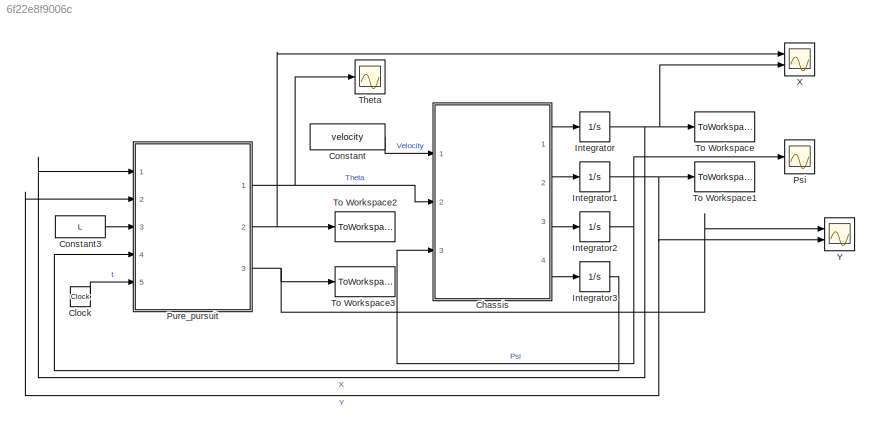
MODEL slx_6f22e8f9006c
KIND model
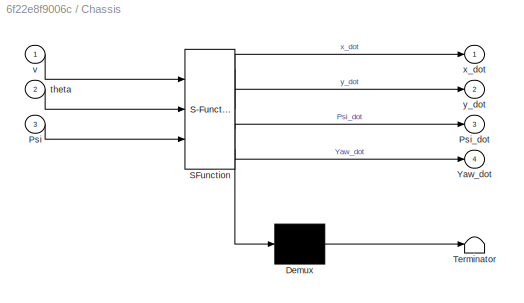
BLOCK [SubSystem] Chassis
  ErrorFcn = Stateflow.Translate.translate
  PermitHierarchicalResolution = ExplicitOnly
  Ports = [3, 4]
  RequestExecContextInheritance = off
  SFBlockType = MATLAB Function
  TreatAsAtomicUnit = on
BLOCK [Demux] Chassis/ Demux 
  Outputs = 1
  Ports = [1, 1]
BLOCK [S-Function] Chassis/ SFunction 
  EnableBusSupport = on
  FunctionName = sf_sfun
  PortCounts = [3 5]
  Ports = [3, 5]
  Tag = Stateflow S-Function bicycle 3
BLOCK [Terminator] Chassis/ Terminator 
BLOCK [Inport] Chassis/Psi
  IconDisplay = Port number
  Port = 3
BLOCK [Outport] Chassis/Psi_dot
  IconDisplay = Port number
  Port = 3
BLOCK [Outport] Chassis/Yaw_dot
  IconDisplay = Port number
  Port = 4
BLOCK [Inport] Chassis/theta
  IconDisplay = Port number
  Port = 2
BLOCK [Inport] Chassis/v
  IconDisplay = Port number
BLOCK [Outport] Chassis/x_dot
  IconDisplay = Port number
BLOCK [Outport] Chassis/y_dot
  IconDisplay = Port number
  Port = 2
BLOCK [Clock] Clock
BLOCK [Constant] Constant
  Value = velocity
BLOCK [Constant] Constant3
  Value = L
BLOCK [Integrator] Integrator
  InitialCondition = 3
  Ports = [1, 1]
BLOCK [Integrator] Integrator1
  Ports = [1, 1]
BLOCK [Integrator] Integrator2
  Ports = [1, 1]
BLOCK [Integrator] Integrator3
  Ports = [1, 1]
BLOCK [Scope] Psi
  Floating = off
  NumInputPorts = 1
  Ports = [1]
  SaveName = ScopeData2
  ShowLegends = off
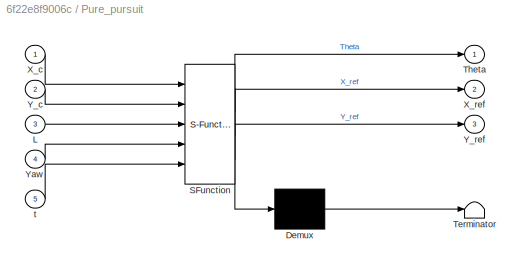
BLOCK [SubSystem] Pure_pursuit
  ErrorFcn = Stateflow.Translate.translate
  PermitHierarchicalResolution = ExplicitOnly
  Ports = [5, 3]
  RequestExecContextInheritance = off
  SFBlockType = MATLAB Function
  TreatAsAtomicUnit = on
BLOCK [Demux] Pure_pursuit/ Demux 
  Outputs = 1
  Ports = [1, 1]
BLOCK [S-Function] Pure_pursuit/ SFunction 
  EnableBusSupport = on
  FunctionName = sf_sfun
  PortCounts = [5 4]
  Ports = [5, 4]
  Tag = Stateflow S-Function bicycle 1
BLOCK [Terminator] Pure_pursuit/ Terminator 
BLOCK [Inport] Pure_pursuit/L
  IconDisplay = Port number
  Port = 3
BLOCK [Outport] Pure_pursuit/Theta
  IconDisplay = Port number
BLOCK [Inport] Pure_pursuit/X_c
  IconDisplay = Port number
BLOCK [Outport] Pure_pursuit/X_ref
  IconDisplay = Port number
  Port = 2
BLOCK [Inport] Pure_pursuit/Y_c
  IconDisplay = Port number
  Port = 2
BLOCK [Outport] Pure_pursuit/Y_ref
  IconDisplay = Port number
  Port = 3
BLOCK [Inport] Pure_pursuit/Yaw
  IconDisplay = Port number
  Port = 4
BLOCK [Inport] Pure_pursuit/t
  IconDisplay = Port number
  Port = 5
BLOCK [Scope] Theta
  Floating = off
  NumInputPorts = 1
  Ports = [1]
  SaveName = ScopeData3
  ShowLegends = off
BLOCK [ToWorkspace] To Workspace
  FixptAsFi = on
  MaxDataPoints = inf
  Ports = [1]
  SampleTime = -1
  Save2DSignal = 3-D array (concatenate along third dimension)
  VariableName = X_p
BLOCK [ToWorkspace] To Workspace1
  FixptAsFi = on
  MaxDataPoints = inf
  Ports = [1]
  SampleTime = -1
  Save2DSignal = 3-D array (concatenate along third dimension)
  VariableName = Y_p
BLOCK [ToWorkspace] To Workspace2
  FixptAsFi = on
  MaxDataPoints = inf
  Ports = [1]
  SampleTime = -1
  Save2DSignal = 3-D array (concatenate along third dimension)
  VariableName = X_ref
BLOCK [ToWorkspace] To Workspace3
  FixptAsFi = on
  MaxDataPoints = inf
  Ports = [1]
  SampleTime = -1
  Save2DSignal = 3-D array (concatenate along third dimension)
  VariableName = Y_ref
BLOCK [Scope] X
  Floating = off
  NumInputPorts = 2
  Ports = [2]
  ShowLegends = off
  YMax = 5~5
  YMin = -5~-5
BLOCK [Scope] Y
  Floating = off
  NumInputPorts = 2
  Ports = [2]
  SaveName = ScopeData1
  ShowLegends = off
  YMax = 5~5
  YMin = -5~-5
LINE Chassis:1 -> Integrator:1
LINE Chassis:2 -> Integrator1:1
LINE Chassis:3 -> Integrator2:1
LINE Chassis:4 -> Integrator3:1
LINE Clock:1 -> Pure_pursuit:5
LINE Constant3:1 -> Pure_pursuit:3
LINE Constant:1 -> Chassis:1
NET Integrator1:1 -> Pure_pursuit:2, To Workspace1:1, Y:2
NET Integrator2:1 -> Chassis:3, Psi:1
LINE Integrator3:1 -> Pure_pursuit:4
NET Integrator:1 -> Pure_pursuit:1, To Workspace:1, X:2
NET Pure_pursuit:1 -> Chassis:2, Theta:1
NET Pure_pursuit:2 -> To Workspace2:1, X:1
NET Pure_pursuit:3 -> To Workspace3:1, Y:1
note: NET lines group one-source signal fan-out (src -> all destinations, sorted); 1:1 wires keep LINE
CHART Pure_pursuit states=1 transitions=1
  STATE_LABEL 'eML_blk_kernel()'
  STATE_LABEL 'SCRIPT:\nfunction [Theta, X_ref, Y_ref]   = Pure_pursuit( X_c, Y_c,L,  Yaw, t)\nl =2.6; % wheelbase\n%L = 1; % look ahead distance\nX_ref = 20;%1*t;\nY_ref = 20;\n\nP_e = sqrt((X_ref-X_c)^2 + (Y_ref - Y_c)^2);\n\np = polyfit([ X_c, X_ref], [Y_c, Y_ref],1);\nif p(1) < 0 \n     P_e = P_e*-1;% Turn right\nend\n\nAlfa = atan((Y_ref - Y_c)/(X_ref-X_c)) - Yaw;\n\n%Theta = atan((2*l*P_e)/L^2);\n\nTheta = atan((2*L*sin(Alf...<+150ch>'
CHART Chassis states=1 transitions=1
  STATE_LABEL 'eML_blk_kernel()'
  STATE_LABEL 'SCRIPT:\nfunction [x_dot,y_dot, Psi_dot, Yaw_dot] = chassis_dynamics(v, theta, Psi)\n\nl = 2.5;% wheelbase\n\nx_dot = v*cos(Psi);\ny_dot =v*sin(Psi);\nPsi_dot = v*tan(theta)./l;\nYaw_dot = v/l*tan(Psi)\n\nreturn'
